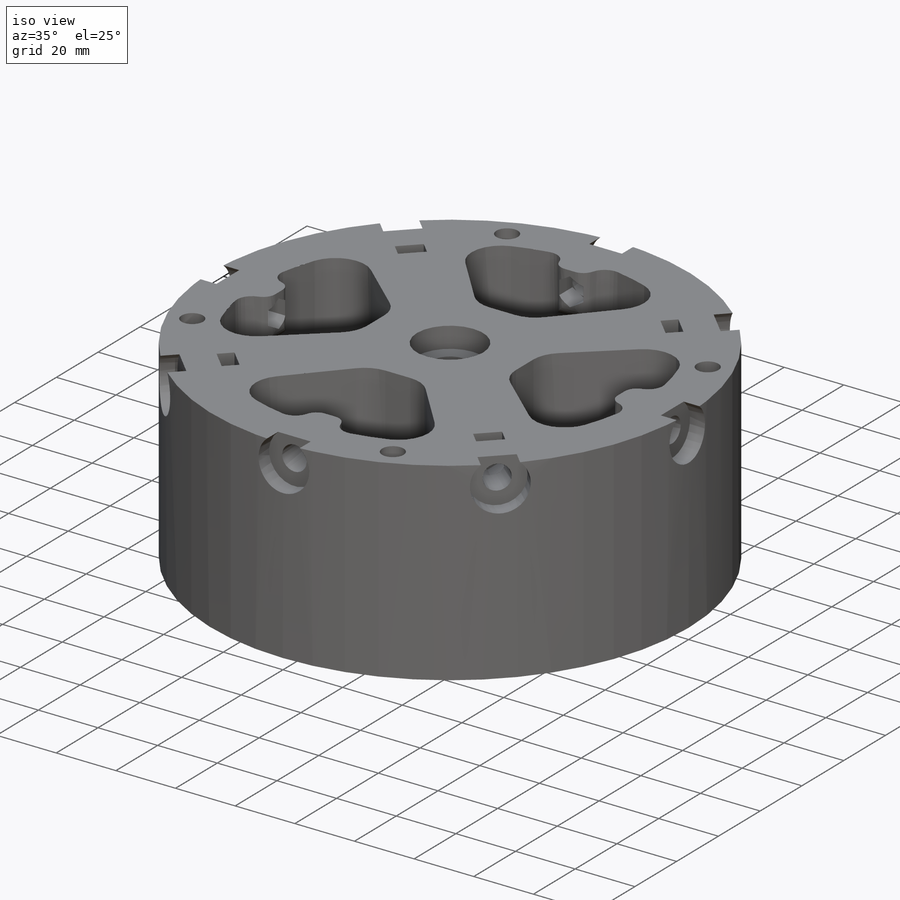
[diagram: iso view]
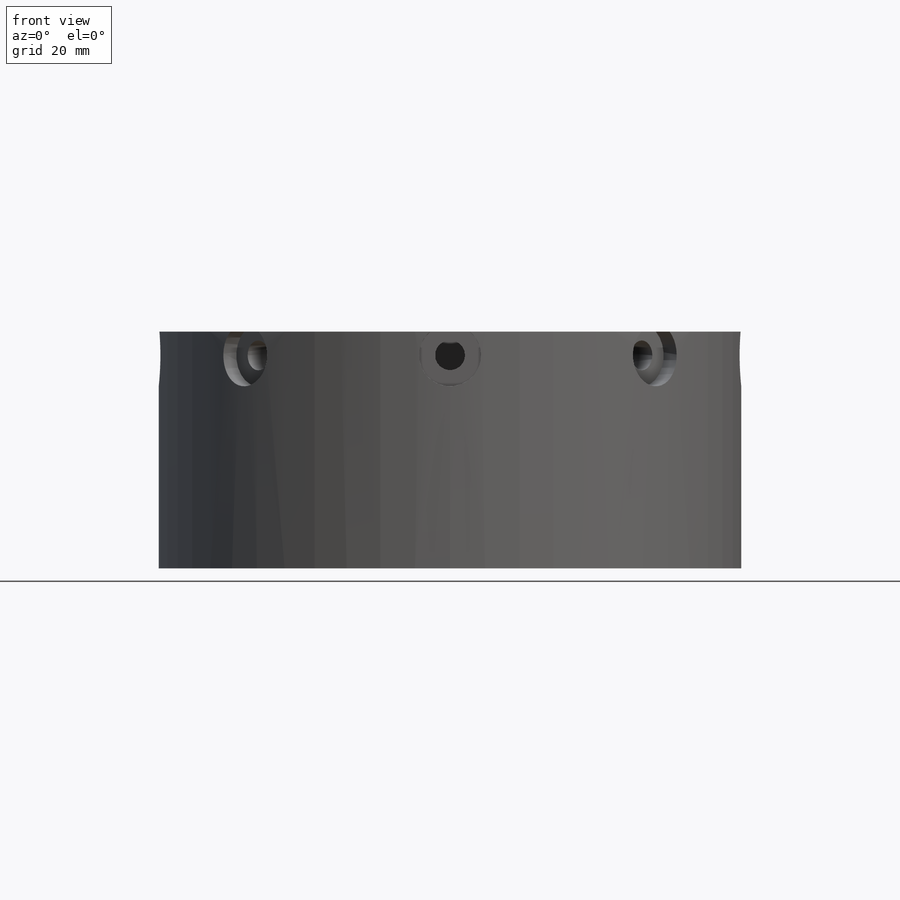
[diagram: front view]
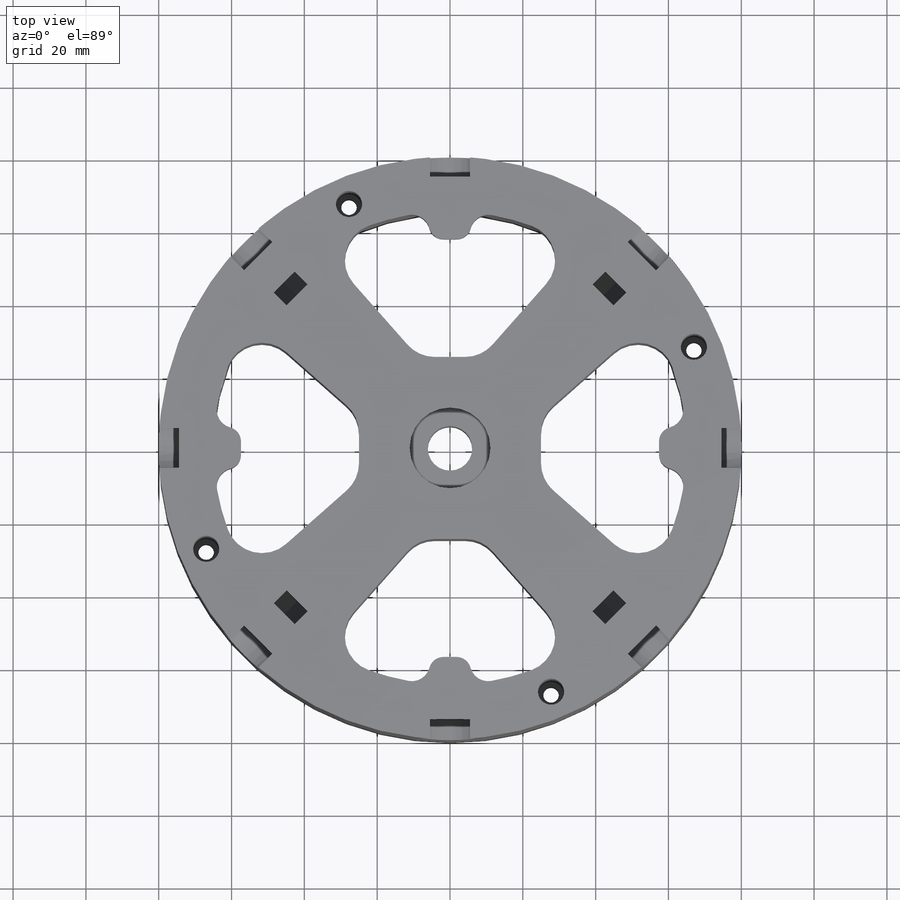
[diagram: top view]
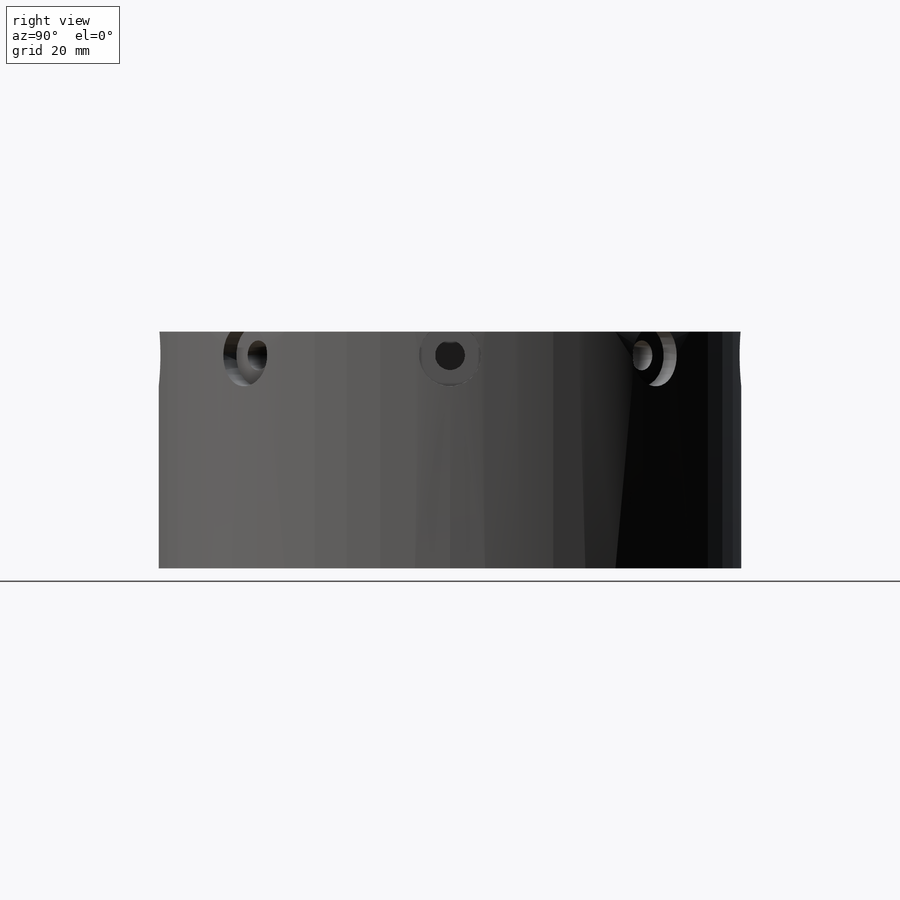
[diagram: right view]
SOLIDWORKS PART (.sldprt)
format: sldprt  version: not decoded by parser v0  size: 997,376 bytes
history: native  units: mm
features: sketch x30, cut_extrude x18, plane x7, extrude x7, pattern_circular x6, fillet x2, material x1 (+9 scaffold rows collapsed)
feature tree (80):
  scaffold x9  (default folders/planes/origin — collapsed)
  material  "Material <sin especificar>"
  plane  "Alzado"
  plane  "Planta"
  plane  "Vista lateral"
  sketch  "Croquis1"  dims[D1=160.0mm D2=15.0mm]
  extrude  "Saliente-Extruir1"  Depth=65mm
  sketch  "Croquis3"  dims[D1=160.0mm]
  extrude  "Saliente-Extruir2"  Depth=34.1mm
  sketch  "Croquis4"  dims[c1.D1=45.0mm c1.D4=10.0mm c2.D1=50.0mm c2.D2=35.0mm c2.D3=35.0mm c2.D5=130.0mm c2.D6=35.0mm c2.D7=35.0mm]
  cut_extrude  "Cortar-Extruir1"  Depth=63.5mm
  sketch  "Croquis5"  dims[D1=22.2mm]
  cut_extrude  "Cortar-Extruir2"  Depth=7mm
  sketch  "Croquis6"  dims[D1=12.2mm]
  cut_extrude  "Cortar-Extruir3"  Depth=47mm
  sketch  "Croquis8"  dims[D1=22.2mm]
  cut_extrude  "Cortar-Extruir4"  Depth=7mm
  sketch  "Croquis12"  dims[D1=160.0mm]
  plane  "Plano2"
  sketch  "Croquis13"  dims[D1=17.0mm D2=6.5mm]
  cut_extrude  "Cortar-Extruir7"  Depth=5.5mm
  sketch  "Croquis14"  dims[D1=8.2mm]
  sketch  "Croquis15"  dims[D1=8.1mm D2=5.0mm D3=10.1mm]
  cut_extrude  "Cortar-Extruir9"  Depth=12.1mm
  cut_extrude  "Cortar-Extruir11"  [1 undecoded]
  sketch  "Croquis19"  dims[D1=6.5mm D2=8.1mm]
  extrude  "Saliente-Extruir3"  [1 undecoded]
  pattern_circular  "MatrizC5"  Count=4 Angle=360deg
  pattern_circular  "MatrizC7"  Count=4 Angle=360deg
  sketch  "Croquis20"  dims[D1=8.2mm]
  cut_extrude  "Cortar-Extruir14"  [1 undecoded]
  sketch  "Croquis21"  dims[D1=8.2mm]
  cut_extrude  "Cortar-Extruir16"  [1 undecoded]
  sketch  "Croquis22"  dims[D1=8.2mm]
  cut_extrude  "Cortar-Extruir17"  [1 undecoded]
  sketch  "Croquis24"  dims[c1.D1=6.5mm c1.D2=8.1mm c2.D1=6.5mm c2.D2=8.1mm]
  extrude  "Saliente-Extruir4"  [1 undecoded]
  sketch  "Croquis25"  dims[D1=8.1mm D2=6.5mm]
  extrude  "Saliente-Extruir5"  [1 undecoded]
  sketch  "Croquis26"  dims[D1=8.1mm D2=6.5mm]
  extrude  "Saliente-Extruir6"  [1 undecoded]
  pattern_circular  "MatrizC16"  Count=8 Angle=360deg
  sketch  "Croquis27"  dims[D1=17.1mm D2=~10.954451mm]
  extrude  "Saliente-Extruir7"  Depth=15mm
  pattern_circular  "MatrizC17"  Count=4 Angle=360deg
  sketch  "Croquis28"  dims[D1=8.2mm]
  cut_extrude  "Cortar-Extruir18"  Depth=10.1mm
  sketch  "Croquis29"  dims[D1=8.2mm]
  cut_extrude  "Cortar-Extruir19"  Depth=10.1mm
  sketch  "Croquis30"  dims[D1=8.2mm]
  cut_extrude  "Cortar-Extruir20"  Depth=10.1mm
  sketch  "Croquis31"  dims[D1=8.2mm]
  cut_extrude  "Cortar-Extruir21"  Depth=10.1mm
  sketch  "Croquis32"  dims[D1=6.5mm D2=8.1mm]
  cut_extrude  "Cortar-Extruir22"  Depth=7mm
  pattern_circular  "MatrizC19"  Count=4 Angle=360deg
  fillet  "Redondeo2"  Radius=5mm
  fillet  "Redondeo4"  Radius=4mm
  sketch  "Croquis34"  dims[D1=145.0mm D2=7.2mm]
  cut_extrude  "Cortar-Extruir24"  Depth=50.3mm
  sketch  "Croquis35"  dims[D1=4.3mm]
  cut_extrude  "Cortar-Extruir25"  Depth=50.3mm
  pattern_circular  "MatrizC20"  Count=4 Angle=360deg
  plane  "Plano4"
  sketch  "Croquis39"  dims[c1.D3=30.0mm c1.D4=8.5mm c1.D2=8.0mm c1.D7=10.0mm c1.D1=27.0mm c2.D2=65.0mm c3.D2=37.0deg c4.D2=14.0mm c5.D2=37.0deg c5.D6=8.5mm c5.D4=~12.302348mm c6.D6=16.0mm c7.D6=~50.254923deg c7.D5=5.0mm]
  sketch  "Croquis40"
  sketch  "Croquis41"
  plane  "Plano5"
  plane  "Plano6"
  sketch  "Croquis42"  dims[c1.D1=1.0mm c1.D2=15.0mm c1.D3=15.0mm c2.D3=15.0deg]
  cut_extrude  "Cortar-Extruir26"  Depth=2mm
  sketch  "Croquis43"
decode coverage: 52 of 63 modeling features carry decoded parameters
note: ~ marks probable driven/reference dimensions
note: 8 parameter values undecoded
summary: no parameter record found for 8 features
note: suppression state not decoded; provenance and decode notes live in map.json
